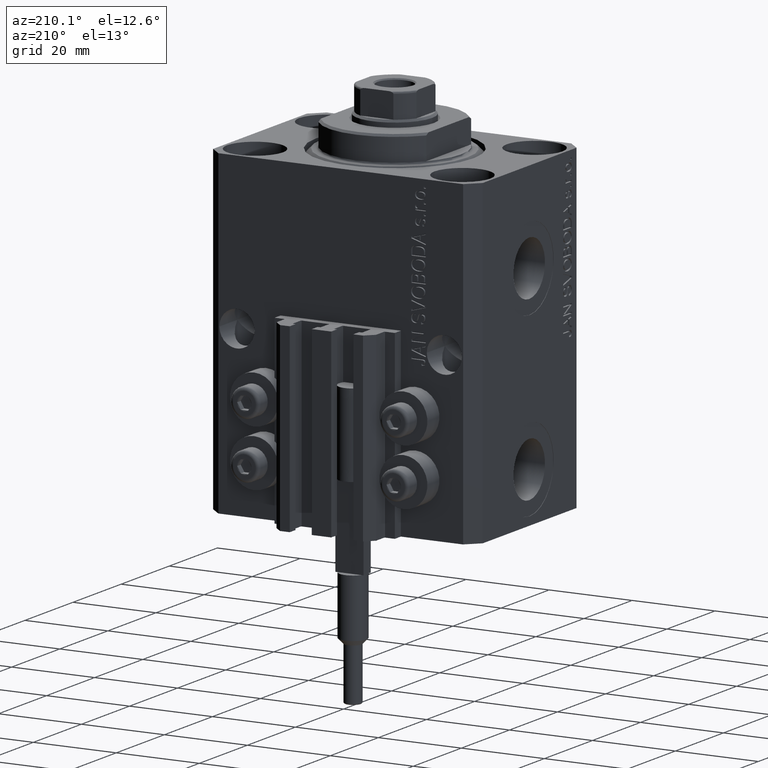
[diagram: clean part render]
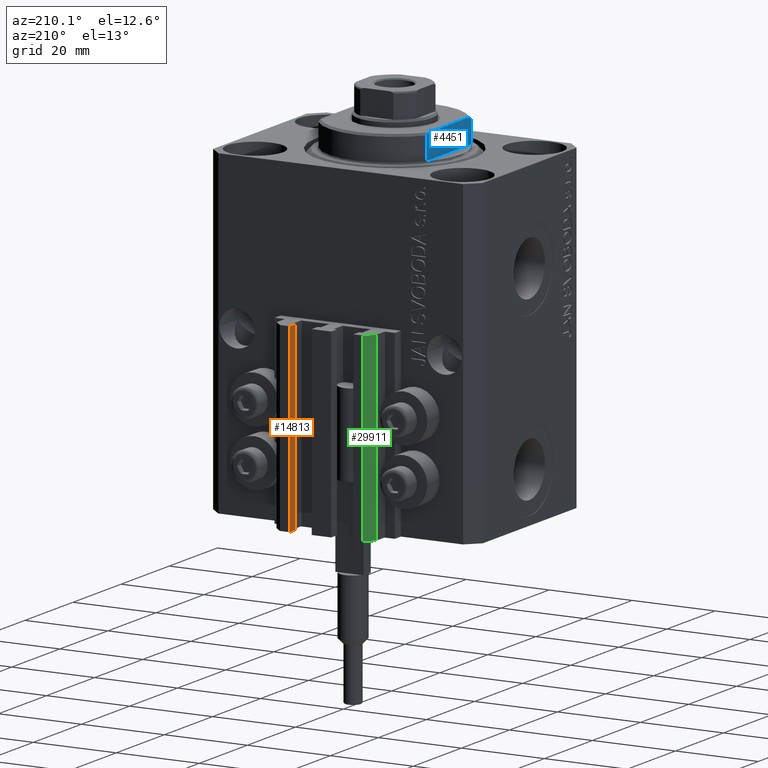
[diagram: same view with three faces highlighted in distinct colors, each labeled with its STEP entity id]
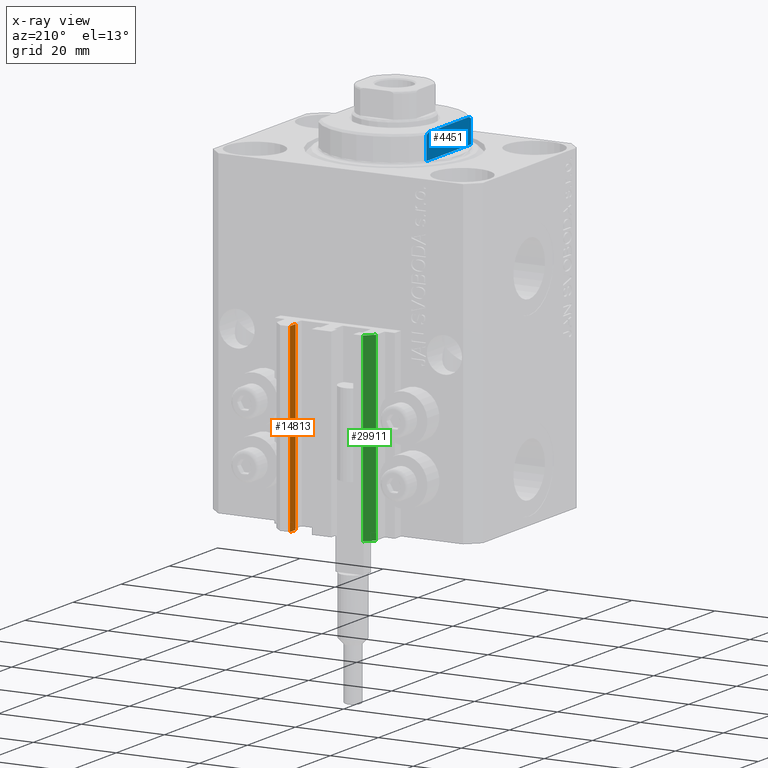
[diagram: x-ray of the same camera — body ghosted, the three highlighted faces saturated]
A machine part, auxiliary view with three faces highlighted in distinct colors.
The next image is the same camera in x-ray (body ghosted, the three faces saturated) — at least one of them is partly hidden behind the body in this view.
Their STEP definitions:

[orange] entity #14813 — the highlighted planar face has unit normal (-1, -0, 0).
#259 = EDGE_CURVE ( 'NONE', #44566, #18352, #5382, .T. ) ;
#1636 = CARTESIAN_POINT ( 'NONE',  ( 7.649999999999995026, 30.49999999999949196, -77.00000000000000000 ) ) ;
#2311 = ORIENTED_EDGE ( 'NONE', *, *, #29397, .T. ) ;
#2380 = VECTOR ( 'NONE', #2435, 1000.000000000000000 ) ;
#2435 = DIRECTION ( 'NONE',  ( 3.614007241618365534E-16, -1.000000000000000000, 0.000000000000000000 ) ) ;
#3867 = LINE ( 'NONE', #11374, #7816 ) ;
#3876 = EDGE_CURVE ( 'NONE', #33539, #35876, #3867, .T. ) ;
#5382 = LINE ( 'NONE', #17250, #27810 ) ;
#7634 = EDGE_LOOP ( 'NONE', ( #30508, #13403, #2311, #23732 ) ) ;
#7816 = VECTOR ( 'NONE', #26151, 1000.000000000000000 ) ;
#11374 = CARTESIAN_POINT ( 'NONE',  ( 7.649999999999995026, 30.49999999999949196, -77.00000000000000000 ) ) ;
#13126 = DIRECTION ( 'NONE',  ( 0.000000000000000000, 0.000000000000000000, 1.000000000000000000 ) ) ;
#13403 = ORIENTED_EDGE ( 'NONE', *, *, #3876, .F. ) ;
#13447 = CARTESIAN_POINT ( 'NONE',  ( 7.649999999999995914, 28.09999999999950404, -77.00000000000000000 ) ) ;
#14813 = ADVANCED_FACE ( 'NONE', ( #44574 ), #27966, .T. ) ;
#15927 = CARTESIAN_POINT ( 'NONE',  ( 7.649999999999995026, 30.49999999999949196, -77.00000000000000000 ) ) ;
#17067 = DIRECTION ( 'NONE',  ( 3.614007241618365534E-16, -1.000000000000000000, 0.000000000000000000 ) ) ;
#17250 = CARTESIAN_POINT ( 'NONE',  ( 7.649999999999995914, 28.09999999999950404, -77.00000000000000000 ) ) ;
#18352 = VERTEX_POINT ( 'NONE', #46726 ) ;
#21096 = LINE ( 'NONE', #24723, #2380 ) ;
#23732 = ORIENTED_EDGE ( 'NONE', *, *, #259, .T. ) ;
#24723 = CARTESIAN_POINT ( 'NONE',  ( 7.649999999999995026, 30.49999999999949196, -33.00000000000000000 ) ) ;
#25211 = EDGE_CURVE ( 'NONE', #35876, #18352, #21096, .T. ) ;
#25765 = CARTESIAN_POINT ( 'NONE',  ( 7.649999999999995026, 30.49999999999949196, -77.00000000000000000 ) ) ;
#26151 = DIRECTION ( 'NONE',  ( 0.000000000000000000, 0.000000000000000000, 1.000000000000000000 ) ) ;
#26467 = DIRECTION ( 'NONE',  ( 3.614007241618365534E-16, -1.000000000000000000, 0.000000000000000000 ) ) ;
#27101 = CARTESIAN_POINT ( 'NONE',  ( 7.649999999999995026, 30.49999999999949196, -33.00000000000000000 ) ) ;
#27810 = VECTOR ( 'NONE', #13126, 1000.000000000000000 ) ;
#27966 = PLANE ( 'NONE',  #47839 ) ;
#29397 = EDGE_CURVE ( 'NONE', #33539, #44566, #29647, .T. ) ;
#29647 = LINE ( 'NONE', #25765, #33477 ) ;
#30508 = ORIENTED_EDGE ( 'NONE', *, *, #25211, .F. ) ;
#33477 = VECTOR ( 'NONE', #26467, 1000.000000000000000 ) ;
#33539 = VERTEX_POINT ( 'NONE', #1636 ) ;
#34098 = DIRECTION ( 'NONE',  ( -1.000000000000000000, -3.614007241618365534E-16, 0.000000000000000000 ) ) ;
#35876 = VERTEX_POINT ( 'NONE', #27101 ) ;
#44566 = VERTEX_POINT ( 'NONE', #13447 ) ;
#44574 = FACE_OUTER_BOUND ( 'NONE', #7634, .T. ) ;
#46726 = CARTESIAN_POINT ( 'NONE',  ( 7.649999999999995914, 28.09999999999950404, -33.00000000000000000 ) ) ;
#47839 = AXIS2_PLACEMENT_3D ( 'NONE', #15927, #34098, #17067 ) ;

[blue] entity #4451 — the highlighted planar face has unit normal (-1, 0, 0).
#273 = CARTESIAN_POINT ( 'NONE',  ( 13.00000000000000000, -9.327379053088813876, -6.500000000000000000 ) ) ;
#1110 = CARTESIAN_POINT ( 'NONE',  ( 13.00000000000000000, -9.327379053088815652, -0.4999999999999995559 ) ) ;
#1948 = LINE ( 'NONE', #42926, #33162 ) ;
#2830 = CARTESIAN_POINT ( 'NONE',  ( 13.00000000000000000, 9.327379053088916905, -6.000000000000014211 ) ) ;
#4147 = CARTESIAN_POINT ( 'NONE',  ( 13.00000000000000000, 9.327379053088815652, -0.4999999999999995559 ) ) ;
#4451 = ADVANCED_FACE ( 'NONE', ( #27418 ), #41499, .T. ) ;
#5330 = LINE ( 'NONE', #11886, #43511 ) ;
#6074 = EDGE_CURVE ( 'NONE', #43958, #12782, #43001, .T. ) ;
#6239 = CARTESIAN_POINT ( 'NONE',  ( 13.00000000000000000, -9.327379053088815652, -6.000000000000023981 ) ) ;
#6609 = DIRECTION ( 'NONE',  ( 0.000000000000000000, -1.000000000000000000, -0.000000000000000000 ) ) ;
#11168 = DIRECTION ( 'NONE',  ( 0.000000000000000000, 0.000000000000000000, -1.000000000000000000 ) ) ;
#11886 = CARTESIAN_POINT ( 'NONE',  ( 13.00000000000000000, -43.08131845707602992, -0.4999999999999995559 ) ) ;
#12259 = ORIENTED_EDGE ( 'NONE', *, *, #20584, .T. ) ;
#12782 = VERTEX_POINT ( 'NONE', #20137 ) ;
#12824 = CARTESIAN_POINT ( 'NONE',  ( 13.00000000000000000, -8.440971508067139695, -6.500000000000000000 ) ) ;
#14531 = EDGE_CURVE ( 'NONE', #12782, #24596, #41164, .T. ) ;
#15384 = EDGE_CURVE ( 'NONE', #40589, #24596, #37078, .T. ) ;
#15810 = VECTOR ( 'NONE', #6609, 1000.000000000000000 ) ;
#16266 = VERTEX_POINT ( 'NONE', #4147 ) ;
#17612 = CARTESIAN_POINT ( 'NONE',  ( 13.00000000000000000, 9.034035639617135516, -6.171007825636148247 ) ) ;
#19867 = CARTESIAN_POINT ( 'NONE',  ( 13.00000000000000000, -8.738941625005658409, -6.337731789204285704 ) ) ;
#20137 = CARTESIAN_POINT ( 'NONE',  ( 13.00000000000000000, -8.440971508067139695, -6.500000000000000000 ) ) ;
#20584 = EDGE_CURVE ( 'NONE', #30456, #16266, #1948, .T. ) ;
#21616 = CARTESIAN_POINT ( 'NONE',  ( 13.00000000000000000, 8.440971508067139695, -6.500000000000000000 ) ) ;
#22504 = ORIENTED_EDGE ( 'NONE', *, *, #27401, .T. ) ;
#22680 = ORIENTED_EDGE ( 'NONE', *, *, #15384, .T. ) ;
#22690 = EDGE_CURVE ( 'NONE', #30456, #43958, #45983, .T. ) ;
#23023 = CARTESIAN_POINT ( 'NONE',  ( 13.00000000000000000, -9.034292940839600661, -6.170857829009063877 ) ) ;
#23077 = CARTESIAN_POINT ( 'NONE',  ( 13.00000000000000000, -43.08131845707602992, -0.4999999999999995559 ) ) ;
#24031 = DIRECTION ( 'NONE',  ( -0.000000000000000000, 0.000000000000000000, -1.000000000000000000 ) ) ;
#24596 = VERTEX_POINT ( 'NONE', #6239 ) ;
#25536 = AXIS2_PLACEMENT_3D ( 'NONE', #23077, #30820, #24031 ) ;
#25953 = CARTESIAN_POINT ( 'NONE',  ( 13.00000000000000000, 9.327379053088916905, -6.000000000000014211 ) ) ;
#27401 = EDGE_CURVE ( 'NONE', #16266, #40589, #5330, .T. ) ;
#27418 = FACE_OUTER_BOUND ( 'NONE', #40486, .T. ) ;
#28905 = CARTESIAN_POINT ( 'NONE',  ( 13.00000000000000000, -43.08131845707602992, -6.500000000000000000 ) ) ;
#29231 = CARTESIAN_POINT ( 'NONE',  ( 13.00000000000000000, 8.738667591047024175, -6.337881022290547506 ) ) ;
#30456 = VERTEX_POINT ( 'NONE', #25953 ) ;
#30467 = ORIENTED_EDGE ( 'NONE', *, *, #6074, .F. ) ;
#30820 = DIRECTION ( 'NONE',  ( 1.000000000000000000, 0.000000000000000000, -0.000000000000000000 ) ) ;
#32390 = CARTESIAN_POINT ( 'NONE',  ( 13.00000000000000000, 8.440971508067139695, -6.500000000000000000 ) ) ;
#32580 = ORIENTED_EDGE ( 'NONE', *, *, #22690, .F. ) ;
#33162 = VECTOR ( 'NONE', #39488, 1000.000000000000000 ) ;
#37078 = LINE ( 'NONE', #273, #45556 ) ;
#37809 = DIRECTION ( 'NONE',  ( 0.000000000000000000, -1.000000000000000000, -0.000000000000000000 ) ) ;
#39488 = DIRECTION ( 'NONE',  ( -0.000000000000000000, -0.000000000000000000, 1.000000000000000000 ) ) ;
#40486 = EDGE_LOOP ( 'NONE', ( #12259, #22504, #22680, #47723, #30467, #32580 ) ) ;
#40589 = VERTEX_POINT ( 'NONE', #1110 ) ;
#41164 = B_SPLINE_CURVE_WITH_KNOTS ( 'NONE', 3,
 ( #12824, #19867, #23023, #45826 ),
 .UNSPECIFIED., .F., .F.,
 ( 4, 4 ),
 ( 0.04915043732154477513, 0.05017913261572019834 ),
 .UNSPECIFIED. ) ;
#41499 = PLANE ( 'NONE',  #25536 ) ;
#42926 = CARTESIAN_POINT ( 'NONE',  ( 13.00000000000000000, 9.327379053088813876, -6.500000000000000000 ) ) ;
#43001 = LINE ( 'NONE', #28905, #15810 ) ;
#43511 = VECTOR ( 'NONE', #37809, 1000.000000000000000 ) ;
#43958 = VERTEX_POINT ( 'NONE', #21616 ) ;
#45556 = VECTOR ( 'NONE', #11168, 1000.000000000000000 ) ;
#45826 = CARTESIAN_POINT ( 'NONE',  ( 13.00000000000000000, -9.327379053088815652, -6.000000000000023981 ) ) ;
#45983 = B_SPLINE_CURVE_WITH_KNOTS ( 'NONE', 3,
 ( #2830, #17612, #29231, #32390 ),
 .UNSPECIFIED., .F., .F.,
 ( 4, 4 ),
 ( 0.03031084603841393416, 0.03132841702658675093 ),
 .UNSPECIFIED. ) ;
#47723 = ORIENTED_EDGE ( 'NONE', *, *, #14531, .F. ) ;

[green] entity #29911 — the highlighted planar face has unit normal (-0.7071, 0.7071, 0).
#1085 = VECTOR ( 'NONE', #27364, 999.9999999999998863 ) ;
#2856 = ORIENTED_EDGE ( 'NONE', *, *, #10426, .T. ) ;
#3532 = EDGE_LOOP ( 'NONE', ( #9043, #47003, #10601, #2856 ) ) ;
#4156 = VERTEX_POINT ( 'NONE', #12463 ) ;
#6771 = VERTEX_POINT ( 'NONE', #45335 ) ;
#7018 = VECTOR ( 'NONE', #33734, 1000.000000000000000 ) ;
#9043 = ORIENTED_EDGE ( 'NONE', *, *, #15075, .F. ) ;
#9080 = FACE_OUTER_BOUND ( 'NONE', #3532, .T. ) ;
#10121 = CARTESIAN_POINT ( 'NONE',  ( -12.00000000000000000, 28.49999999999948841, -77.00000000000000000 ) ) ;
#10426 = EDGE_CURVE ( 'NONE', #14000, #32761, #31870, .T. ) ;
#10601 = ORIENTED_EDGE ( 'NONE', *, *, #32133, .T. ) ;
#12463 = CARTESIAN_POINT ( 'NONE',  ( -10.00000000000000000, 30.49999999999948841, -33.00000000000000000 ) ) ;
#13201 = CARTESIAN_POINT ( 'NONE',  ( -12.00000000000000000, 28.49999999999948841, -77.00000000000000000 ) ) ;
#13898 = LINE ( 'NONE', #17544, #40863 ) ;
#14000 = VERTEX_POINT ( 'NONE', #10121 ) ;
#15075 = EDGE_CURVE ( 'NONE', #4156, #32761, #13898, .T. ) ;
#16119 = DIRECTION ( 'NONE',  ( -0.7071067811865472397, -0.7071067811865479058, 0.000000000000000000 ) ) ;
#17544 = CARTESIAN_POINT ( 'NONE',  ( -10.00000000000000000, 30.49999999999948841, -33.00000000000000000 ) ) ;
#20484 = DIRECTION ( 'NONE',  ( 0.000000000000000000, 0.000000000000000000, 1.000000000000000000 ) ) ;
#21428 = DIRECTION ( 'NONE',  ( -0.7071067811865472397, -0.7071067811865479058, 0.000000000000000000 ) ) ;
#25369 = EDGE_CURVE ( 'NONE', #6771, #4156, #37370, .T. ) ;
#27364 = DIRECTION ( 'NONE',  ( -0.7071067811865472397, -0.7071067811865479058, 0.000000000000000000 ) ) ;
#29911 = ADVANCED_FACE ( 'NONE', ( #9080 ), #42797, .T. ) ;
#31147 = DIRECTION ( 'NONE',  ( -0.7071067811865479058, 0.7071067811865472397, 0.000000000000000000 ) ) ;
#31385 = CARTESIAN_POINT ( 'NONE',  ( -10.00000000000000000, 30.49999999999948841, -77.00000000000000000 ) ) ;
#31870 = LINE ( 'NONE', #13201, #40721 ) ;
#32133 = EDGE_CURVE ( 'NONE', #6771, #14000, #44860, .T. ) ;
#32761 = VERTEX_POINT ( 'NONE', #37443 ) ;
#32783 = CARTESIAN_POINT ( 'NONE',  ( -10.00000000000000000, 30.49999999999948841, -77.00000000000000000 ) ) ;
#33734 = DIRECTION ( 'NONE',  ( 0.000000000000000000, 0.000000000000000000, 1.000000000000000000 ) ) ;
#35827 = CARTESIAN_POINT ( 'NONE',  ( -10.00000000000000000, 30.49999999999948841, -77.00000000000000000 ) ) ;
#37370 = LINE ( 'NONE', #32783, #7018 ) ;
#37443 = CARTESIAN_POINT ( 'NONE',  ( -12.00000000000000000, 28.49999999999948841, -33.00000000000000000 ) ) ;
#40431 = AXIS2_PLACEMENT_3D ( 'NONE', #31385, #31147, #16119 ) ;
#40721 = VECTOR ( 'NONE', #20484, 1000.000000000000000 ) ;
#40863 = VECTOR ( 'NONE', #21428, 999.9999999999998863 ) ;
#42797 = PLANE ( 'NONE',  #40431 ) ;
#44860 = LINE ( 'NONE', #35827, #1085 ) ;
#45335 = CARTESIAN_POINT ( 'NONE',  ( -10.00000000000000000, 30.49999999999948841, -77.00000000000000000 ) ) ;
#47003 = ORIENTED_EDGE ( 'NONE', *, *, #25369, .F. ) ;